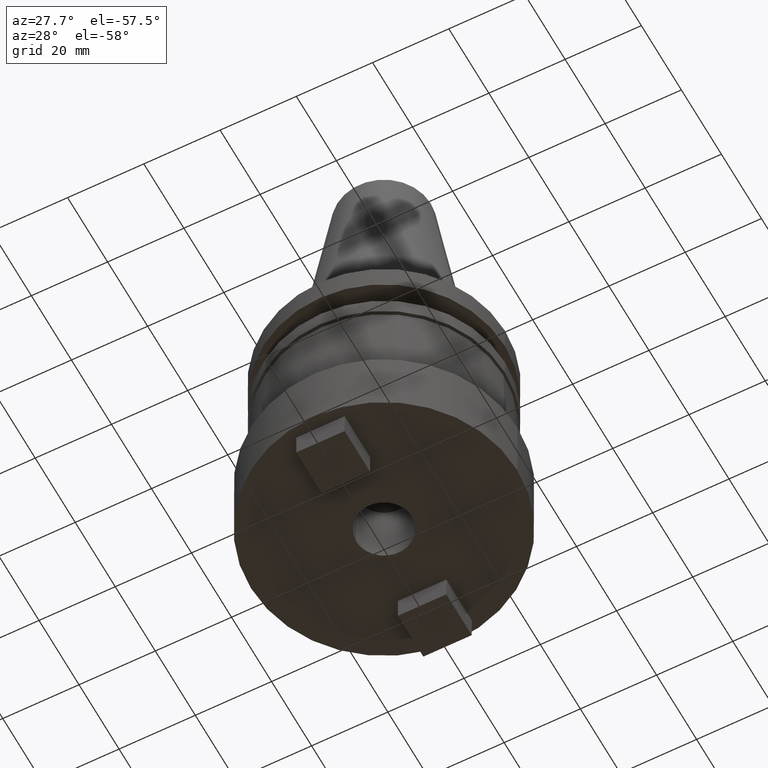
[diagram: clean part render]
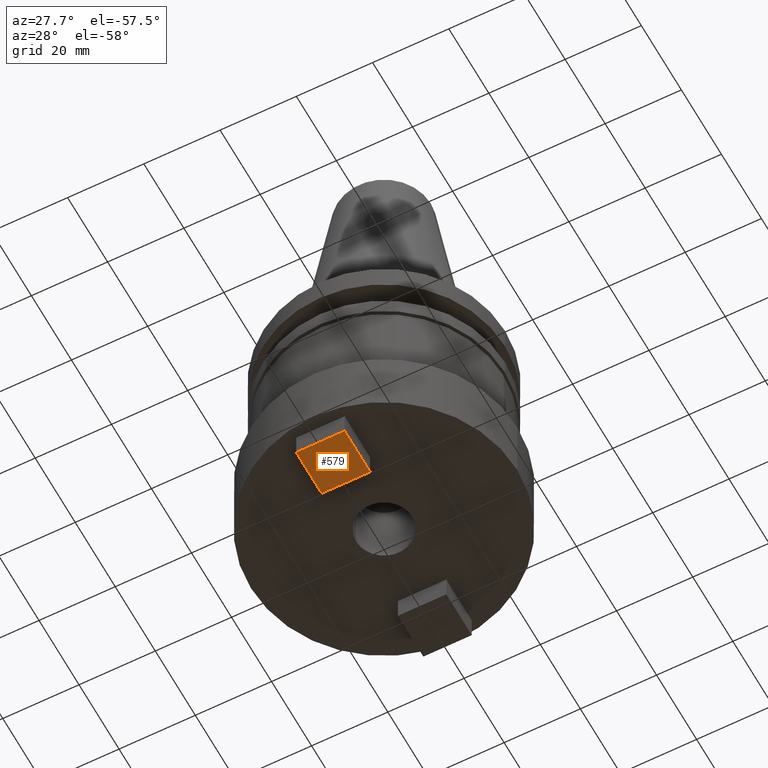
[diagram: same view with one face highlighted and labeled with its STEP entity id]
A machine part, auxiliary view. The second image highlights one B-rep face of the part: STEP entity #579.
In plain terms, the highlighted planar face has unit normal (-0, 0, -1).
Its self-contained STEP definition (entity closure, byte-faithful):
#48 = DIRECTION ( 'NONE',  ( -0.000000000000000000, 1.000000000000000000, -0.000000000000000000 ) ) ;
#80 = VECTOR ( 'NONE', #1175, 1000.000000000000000 ) ;
#91 = CARTESIAN_POINT ( 'NONE',  ( 6.349999999999999645, -19.04999999999999716, -69.90000000000000568 ) ) ;
#154 = VECTOR ( 'NONE', #48, 1000.000000000000000 ) ;
#162 = CARTESIAN_POINT ( 'NONE',  ( 6.349999999999999645, -31.75000000000000000, -69.90000000000000568 ) ) ;
#193 = ORIENTED_EDGE ( 'NONE', *, *, #835, .T. ) ;
#294 = VERTEX_POINT ( 'NONE', #343 ) ;
#312 = VECTOR ( 'NONE', #1046, 1000.000000000000000 ) ;
#343 = CARTESIAN_POINT ( 'NONE',  ( -6.349999999999999645, -19.04999999999999716, -69.90000000000000568 ) ) ;
#449 = CARTESIAN_POINT ( 'NONE',  ( 6.349999999999999645, -31.75000000000000000, -69.90000000000000568 ) ) ;
#528 = LINE ( 'NONE', #594, #154 ) ;
#544 = ORIENTED_EDGE ( 'NONE', *, *, #1128, .T. ) ;
#579 = ADVANCED_FACE ( 'NONE', ( #711 ), #808, .T. ) ;
#594 = CARTESIAN_POINT ( 'NONE',  ( -6.349999999999999645, -19.04999999999999716, -69.90000000000000568 ) ) ;
#606 = EDGE_CURVE ( 'NONE', #1049, #678, #1209, .T. ) ;
#666 = AXIS2_PLACEMENT_3D ( 'NONE', #1176, #1086, #1182 ) ;
#674 = LINE ( 'NONE', #943, #312 ) ;
#678 = VERTEX_POINT ( 'NONE', #1091 ) ;
#686 = VECTOR ( 'NONE', #1191, 1000.000000000000000 ) ;
#711 = FACE_OUTER_BOUND ( 'NONE', #1037, .T. ) ;
#778 = ORIENTED_EDGE ( 'NONE', *, *, #606, .T. ) ;
#797 = CARTESIAN_POINT ( 'NONE',  ( 6.349999999999999645, -19.04999999999999716, -69.90000000000000568 ) ) ;
#808 = PLANE ( 'NONE',  #666 ) ;
#835 = EDGE_CURVE ( 'NONE', #294, #1109, #1156, .T. ) ;
#925 = EDGE_CURVE ( 'NONE', #678, #294, #528, .T. ) ;
#943 = CARTESIAN_POINT ( 'NONE',  ( 6.349999999999999645, -19.04999999999999716, -69.90000000000000568 ) ) ;
#968 = ORIENTED_EDGE ( 'NONE', *, *, #925, .T. ) ;
#1037 = EDGE_LOOP ( 'NONE', ( #968, #193, #544, #778 ) ) ;
#1046 = DIRECTION ( 'NONE',  ( 0.000000000000000000, -1.000000000000000000, 0.000000000000000000 ) ) ;
#1049 = VERTEX_POINT ( 'NONE', #162 ) ;
#1086 = DIRECTION ( 'NONE',  ( -0.000000000000000000, 0.000000000000000000, -1.000000000000000000 ) ) ;
#1091 = CARTESIAN_POINT ( 'NONE',  ( -6.349999999999999645, -31.75000000000000000, -69.90000000000000568 ) ) ;
#1109 = VERTEX_POINT ( 'NONE', #91 ) ;
#1128 = EDGE_CURVE ( 'NONE', #1109, #1049, #674, .T. ) ;
#1156 = LINE ( 'NONE', #797, #80 ) ;
#1175 = DIRECTION ( 'NONE',  ( 1.000000000000000000, -0.000000000000000000, -0.000000000000000000 ) ) ;
#1176 = CARTESIAN_POINT ( 'NONE',  ( 0.000000000000000000, 0.000000000000000000, -69.90000000000000568 ) ) ;
#1182 = DIRECTION ( 'NONE',  ( -1.000000000000000000, 0.000000000000000000, 0.000000000000000000 ) ) ;
#1191 = DIRECTION ( 'NONE',  ( -1.000000000000000000, 0.000000000000000000, 0.000000000000000000 ) ) ;
#1209 = LINE ( 'NONE', #449, #686 ) ;